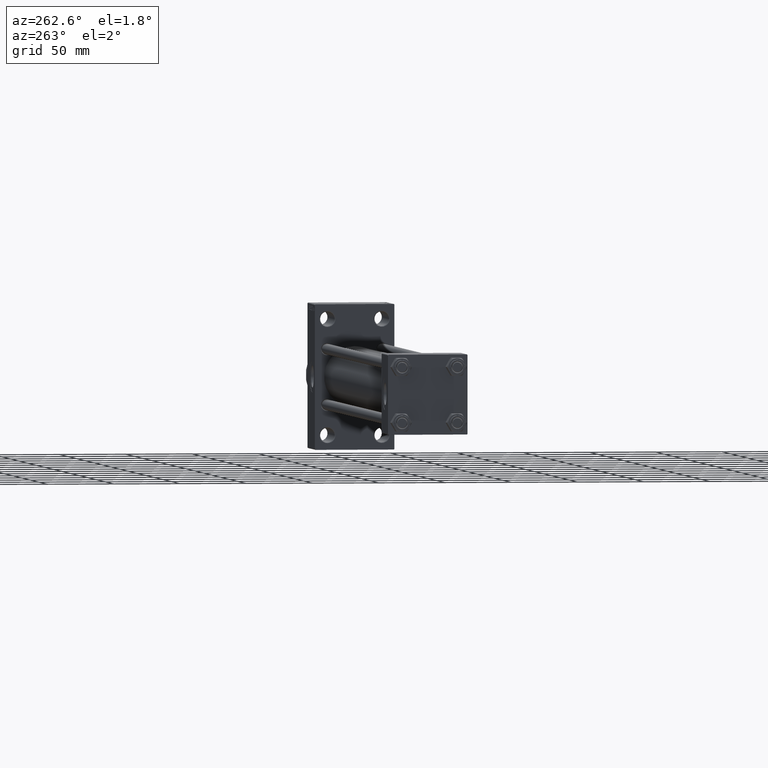
[diagram: clean part render]
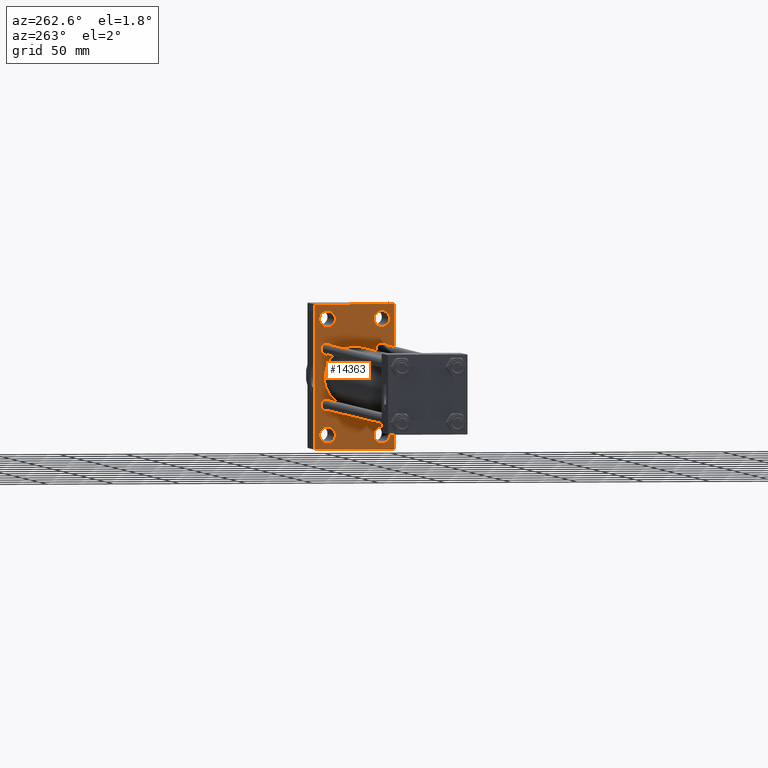
[diagram: same view with one face highlighted and labeled with its STEP entity id]
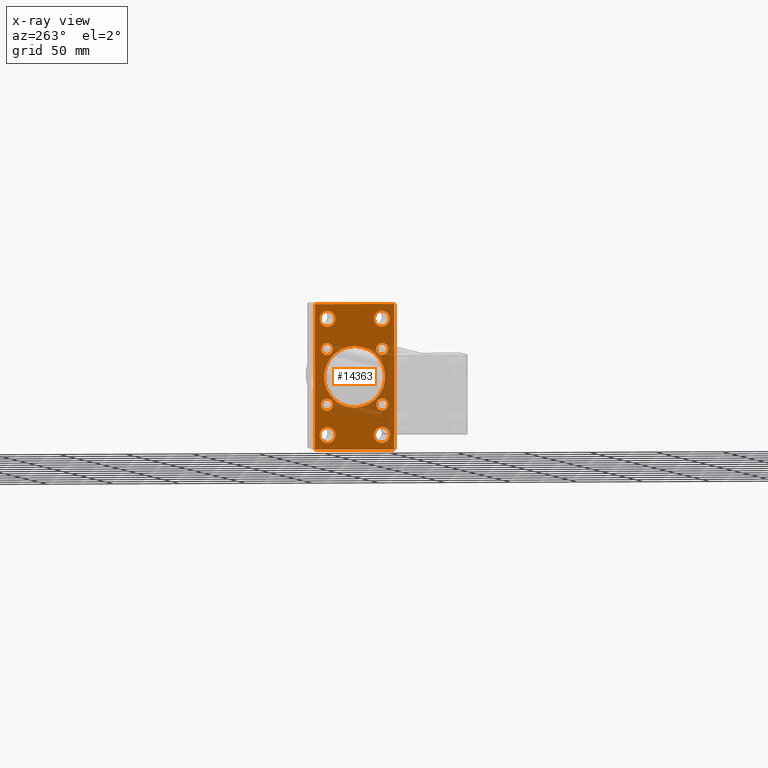
[diagram: x-ray of the same camera — body ghosted, the highlighted face saturated]
A machine part, auxiliary view. The second image highlights one B-rep face of the part: STEP entity #14363.
The next image is the same camera in x-ray: the body ghosted, the highlighted face saturated — about 22% of this face is hidden behind the body in this view.
In plain terms, the highlighted planar face has unit normal (-1, 0, 0).
Its self-contained STEP definition (entity closure, byte-faithful):
#122 = AXIS2_PLACEMENT_3D ( 'NONE', #8820, #8580, #38240 ) ;
#138 = CARTESIAN_POINT ( 'NONE',  ( 425.0000000000000000, 29.99999999999999645, 54.49999999999999289 ) ) ;
#152 = VECTOR ( 'NONE', #9442, 1000.000000000000000 ) ;
#271 = CIRCLE ( 'NONE', #42616, 4.500000000000007105 ) ;
#422 = VERTEX_POINT ( 'NONE', #31917 ) ;
#1286 = CARTESIAN_POINT ( 'NONE',  ( 425.0000000000000000, -20.84999999999999076, 20.85000000000000497 ) ) ;
#1304 = CIRCLE ( 'NONE', #15933, 23.00000000000000000 ) ;
#1403 = DIRECTION ( 'NONE',  ( 1.000000000000000000, -0.000000000000000000, 0.000000000000000000 ) ) ;
#1579 = EDGE_CURVE ( 'NONE', #41639, #33864, #24197, .T. ) ;
#2199 = CARTESIAN_POINT ( 'NONE',  ( 425.0000000000000000, 29.99999999999999645, 54.49999999999999289 ) ) ;
#2833 = ORIENTED_EDGE ( 'NONE', *, *, #45074, .T. ) ;
#2976 = CARTESIAN_POINT ( 'NONE',  ( 425.0000000000000000, 20.84999999999999787, -16.34999999999999432 ) ) ;
#3184 = CARTESIAN_POINT ( 'NONE',  ( 425.0000000000000000, 20.84999999999999787, 25.35000000000000853 ) ) ;
#3239 = VERTEX_POINT ( 'NONE', #31249 ) ;
#3446 = LINE ( 'NONE', #11877, #27910 ) ;
#3462 = VERTEX_POINT ( 'NONE', #29290 ) ;
#3650 = DIRECTION ( 'NONE',  ( 0.000000000000000000, 0.000000000000000000, 1.000000000000000000 ) ) ;
#3808 = CARTESIAN_POINT ( 'NONE',  ( 425.0000000000000000, -20.84999999999999076, -16.34999999999999787 ) ) ;
#4209 = AXIS2_PLACEMENT_3D ( 'NONE', #47521, #47272, #29181 ) ;
#4558 = EDGE_LOOP ( 'NONE', ( #34984, #12783 ) ) ;
#4560 = EDGE_CURVE ( 'NONE', #45084, #29654, #18176, .T. ) ;
#4772 = AXIS2_PLACEMENT_3D ( 'NONE', #9292, #12425, #9058 ) ;
#5172 = VERTEX_POINT ( 'NONE', #27504 ) ;
#5187 = EDGE_LOOP ( 'NONE', ( #14095, #8594 ) ) ;
#5526 = DIRECTION ( 'NONE',  ( 0.000000000000000000, 0.000000000000000000, 1.000000000000000000 ) ) ;
#5855 = VERTEX_POINT ( 'NONE', #32732 ) ;
#6001 = VECTOR ( 'NONE', #31567, 1000.000000000000000 ) ;
#6279 = ORIENTED_EDGE ( 'NONE', *, *, #17300, .T. ) ;
#6456 = ORIENTED_EDGE ( 'NONE', *, *, #41580, .F. ) ;
#6663 = AXIS2_PLACEMENT_3D ( 'NONE', #40554, #37176, #3650 ) ;
#7005 = CARTESIAN_POINT ( 'NONE',  ( 425.0000000000000000, 20.50000000000000000, -37.50000000000004974 ) ) ;
#7024 = DIRECTION ( 'NONE',  ( 0.000000000000000000, 0.000000000000000000, 1.000000000000000000 ) ) ;
#7063 = VERTEX_POINT ( 'NONE', #13571 ) ;
#7342 = VERTEX_POINT ( 'NONE', #11638 ) ;
#7667 = ORIENTED_EDGE ( 'NONE', *, *, #46688, .T. ) ;
#7693 = EDGE_CURVE ( 'NONE', #35580, #422, #40560, .T. ) ;
#7811 = EDGE_CURVE ( 'NONE', #3462, #34937, #1304, .T. ) ;
#7930 = EDGE_LOOP ( 'NONE', ( #30317, #29006 ) ) ;
#7961 = CIRCLE ( 'NONE', #39515, 5.999999999999950262 ) ;
#8090 = DIRECTION ( 'NONE',  ( 0.000000000000000000, 0.000000000000000000, 1.000000000000000000 ) ) ;
#8328 = DIRECTION ( 'NONE',  ( 1.000000000000000000, -0.000000000000000000, 0.000000000000000000 ) ) ;
#8356 = FACE_BOUND ( 'NONE', #15314, .T. ) ;
#8564 = VERTEX_POINT ( 'NONE', #45992 ) ;
#8580 = DIRECTION ( 'NONE',  ( 1.000000000000000000, -0.000000000000000000, 0.000000000000000000 ) ) ;
#8594 = ORIENTED_EDGE ( 'NONE', *, *, #29312, .T. ) ;
#8820 = CARTESIAN_POINT ( 'NONE',  ( 425.0000000000000000, 20.84999999999999787, 20.85000000000000142 ) ) ;
#9058 = DIRECTION ( 'NONE',  ( -0.000000000000000000, 0.000000000000000000, 1.000000000000000000 ) ) ;
#9292 = CARTESIAN_POINT ( 'NONE',  ( 425.0000000000000000, 0.000000000000000000, 0.000000000000000000 ) ) ;
#9321 = CARTESIAN_POINT ( 'NONE',  ( 425.0000000000000000, -20.50000000000000000, 37.50000000000004974 ) ) ;
#9425 = DIRECTION ( 'NONE',  ( -0.000000000000000000, -0.7071067811865474617, -0.7071067811865474617 ) ) ;
#9442 = DIRECTION ( 'NONE',  ( 0.000000000000000000, 0.000000000000000000, -1.000000000000000000 ) ) ;
#9965 = DIRECTION ( 'NONE',  ( 1.000000000000000000, -0.000000000000000000, 0.000000000000000000 ) ) ;
#10162 = LINE ( 'NONE', #2199, #152 ) ;
#10756 = DIRECTION ( 'NONE',  ( 0.000000000000000000, 0.000000000000000000, 1.000000000000000000 ) ) ;
#11210 = CIRCLE ( 'NONE', #21977, 4.500000000000007105 ) ;
#11601 = ORIENTED_EDGE ( 'NONE', *, *, #46025, .T. ) ;
#11615 = EDGE_CURVE ( 'NONE', #33864, #41639, #29316, .T. ) ;
#11638 = CARTESIAN_POINT ( 'NONE',  ( 425.0000000000000000, -29.49999999999988987, 54.50000000000000000 ) ) ;
#11799 = VERTEX_POINT ( 'NONE', #30405 ) ;
#11877 = CARTESIAN_POINT ( 'NONE',  ( 425.0000000000000000, -30.00000000000000000, 54.50000000000000000 ) ) ;
#12425 = DIRECTION ( 'NONE',  ( -1.000000000000000000, 0.000000000000000000, -0.000000000000000000 ) ) ;
#12733 = VERTEX_POINT ( 'NONE', #17765 ) ;
#12783 = ORIENTED_EDGE ( 'NONE', *, *, #35100, .T. ) ;
#12857 = DIRECTION ( 'NONE',  ( 0.000000000000000000, 0.000000000000000000, 1.000000000000000000 ) ) ;
#13042 = LINE ( 'NONE', #20743, #19458 ) ;
#13405 = ORIENTED_EDGE ( 'NONE', *, *, #19645, .T. ) ;
#13571 = CARTESIAN_POINT ( 'NONE',  ( 425.0000000000000000, -20.84999999999999076, -25.35000000000001208 ) ) ;
#13608 = DIRECTION ( 'NONE',  ( 0.000000000000000000, 0.7071067811865081598, -0.7071067811865868746 ) ) ;
#14095 = ORIENTED_EDGE ( 'NONE', *, *, #37802, .T. ) ;
#14363 = ADVANCED_FACE ( 'NONE', ( #33920, #34395, #38243, #19896, #8356, #38000, #41625, #45711, #23284, #23052 ), #27144, .T. ) ;
#14624 = CARTESIAN_POINT ( 'NONE',  ( 425.0000000000000000, -20.50000000000000000, 49.49999999999995026 ) ) ;
#14690 = CARTESIAN_POINT ( 'NONE',  ( 425.0000000000000000, -20.84999999999999076, 20.85000000000000497 ) ) ;
#14878 = AXIS2_PLACEMENT_3D ( 'NONE', #47667, #21835, #10756 ) ;
#15214 = CARTESIAN_POINT ( 'NONE',  ( 425.0000000000000000, -30.00000000000000000, 53.99999999999994316 ) ) ;
#15314 = EDGE_LOOP ( 'NONE', ( #15808, #2833 ) ) ;
#15370 = CARTESIAN_POINT ( 'NONE',  ( 425.0000000000000000, -2.602085213965210642E-15, 0.000000000000000000 ) ) ;
#15488 = EDGE_LOOP ( 'NONE', ( #19252, #26090 ) ) ;
#15808 = ORIENTED_EDGE ( 'NONE', *, *, #43706, .T. ) ;
#15933 = AXIS2_PLACEMENT_3D ( 'NONE', #22365, #33238, #29866 ) ;
#16009 = CARTESIAN_POINT ( 'NONE',  ( 425.0000000000000000, -20.84999999999999076, -20.85000000000000497 ) ) ;
#16590 = VERTEX_POINT ( 'NONE', #2976 ) ;
#17292 = VERTEX_POINT ( 'NONE', #3808 ) ;
#17300 = EDGE_CURVE ( 'NONE', #34937, #3462, #26414, .T. ) ;
#17765 = CARTESIAN_POINT ( 'NONE',  ( 425.0000000000000000, 29.49999999999993960, -54.49999999999999289 ) ) ;
#17975 = CARTESIAN_POINT ( 'NONE',  ( 425.0000000000000000, 29.99999999999999645, 53.99999999999999289 ) ) ;
#18074 = CARTESIAN_POINT ( 'NONE',  ( 425.0000000000000000, 29.50000000000004974, 54.49999999999999289 ) ) ;
#18176 = LINE ( 'NONE', #24698, #26659 ) ;
#18357 = VERTEX_POINT ( 'NONE', #14624 ) ;
#18699 = LINE ( 'NONE', #138, #32937 ) ;
#18791 = EDGE_LOOP ( 'NONE', ( #25446, #6279 ) ) ;
#19252 = ORIENTED_EDGE ( 'NONE', *, *, #42275, .T. ) ;
#19458 = VECTOR ( 'NONE', #9425, 1000.000000000000114 ) ;
#19462 = AXIS2_PLACEMENT_3D ( 'NONE', #25276, #40470, #22366 ) ;
#19645 = EDGE_CURVE ( 'NONE', #17292, #7063, #31903, .T. ) ;
#19753 = AXIS2_PLACEMENT_3D ( 'NONE', #23850, #41959, #5526 ) ;
#19875 = DIRECTION ( 'NONE',  ( 1.000000000000000000, -0.000000000000000000, 0.000000000000000000 ) ) ;
#19896 = FACE_BOUND ( 'NONE', #47743, .T. ) ;
#20328 = CARTESIAN_POINT ( 'NONE',  ( 425.0000000000000000, 20.84999999999999787, -20.85000000000000142 ) ) ;
#20504 = EDGE_CURVE ( 'NONE', #12733, #8564, #22845, .T. ) ;
#20622 = VERTEX_POINT ( 'NONE', #9321 ) ;
#20743 = CARTESIAN_POINT ( 'NONE',  ( 425.0000000000000000, 41.99999999999996447, -41.99999999999996447 ) ) ;
#21835 = DIRECTION ( 'NONE',  ( 1.000000000000000000, -0.000000000000000000, 0.000000000000000000 ) ) ;
#21977 = AXIS2_PLACEMENT_3D ( 'NONE', #34132, #19875, #41375 ) ;
#22135 = DIRECTION ( 'NONE',  ( 0.000000000000000000, 0.000000000000000000, -1.000000000000000000 ) ) ;
#22337 = VERTEX_POINT ( 'NONE', #30138 ) ;
#22365 = CARTESIAN_POINT ( 'NONE',  ( 425.0000000000000000, -2.602085213965210642E-15, 0.000000000000000000 ) ) ;
#22366 = DIRECTION ( 'NONE',  ( 0.000000000000000000, 0.000000000000000000, 1.000000000000000000 ) ) ;
#22517 = DIRECTION ( 'NONE',  ( 1.000000000000000000, -0.000000000000000000, 0.000000000000000000 ) ) ;
#22663 = CARTESIAN_POINT ( 'NONE',  ( 425.0000000000000000, -41.99999999999841549, 42.00000000000278533 ) ) ;
#22845 = LINE ( 'NONE', #44810, #47337 ) ;
#23052 = FACE_OUTER_BOUND ( 'NONE', #47420, .T. ) ;
#23167 = CIRCLE ( 'NONE', #23947, 5.999999999999950262 ) ;
#23284 = FACE_BOUND ( 'NONE', #18791, .T. ) ;
#23472 = DIRECTION ( 'NONE',  ( 0.000000000000000000, 0.000000000000000000, 1.000000000000000000 ) ) ;
#23627 = CIRCLE ( 'NONE', #36720, 5.999999999999950262 ) ;
#23850 = CARTESIAN_POINT ( 'NONE',  ( 425.0000000000000000, 20.50000000000000000, -43.50000000000000000 ) ) ;
#23947 = AXIS2_PLACEMENT_3D ( 'NONE', #36862, #32525, #40226 ) ;
#24197 = CIRCLE ( 'NONE', #4209, 5.999999999999950262 ) ;
#24392 = CARTESIAN_POINT ( 'NONE',  ( 425.0000000000000000, -20.50000000000000000, 43.50000000000000000 ) ) ;
#24476 = AXIS2_PLACEMENT_3D ( 'NONE', #41363, #45923, #38443 ) ;
#24698 = CARTESIAN_POINT ( 'NONE',  ( 425.0000000000000000, 42.00000000000166267, 41.99999999999699440 ) ) ;
#24969 = AXIS2_PLACEMENT_3D ( 'NONE', #16009, #8328, #8090 ) ;
#25125 = ORIENTED_EDGE ( 'NONE', *, *, #36569, .T. ) ;
#25276 = CARTESIAN_POINT ( 'NONE',  ( 425.0000000000000000, 20.84999999999999787, 20.85000000000000142 ) ) ;
#25446 = ORIENTED_EDGE ( 'NONE', *, *, #7811, .T. ) ;
#25695 = EDGE_CURVE ( 'NONE', #16590, #5855, #11210, .T. ) ;
#26090 = ORIENTED_EDGE ( 'NONE', *, *, #40357, .T. ) ;
#26225 = DIRECTION ( 'NONE',  ( 1.000000000000000000, 0.000000000000000000, 0.000000000000000000 ) ) ;
#26414 = CIRCLE ( 'NONE', #36448, 23.00000000000000000 ) ;
#26659 = VECTOR ( 'NONE', #13608, 1000.000000000000000 ) ;
#27144 = PLANE ( 'NONE',  #4772 ) ;
#27187 = VECTOR ( 'NONE', #30393, 1000.000000000000000 ) ;
#27504 = CARTESIAN_POINT ( 'NONE',  ( 425.0000000000000000, -20.84999999999999076, 25.35000000000001208 ) ) ;
#27646 = AXIS2_PLACEMENT_3D ( 'NONE', #20328, #9965, #12857 ) ;
#27910 = VECTOR ( 'NONE', #37210, 1000.000000000000000 ) ;
#28164 = VERTEX_POINT ( 'NONE', #15214 ) ;
#28174 = EDGE_CURVE ( 'NONE', #7063, #17292, #45165, .T. ) ;
#28250 = CARTESIAN_POINT ( 'NONE',  ( 425.0000000000000000, 2.146024240737012665E-16, -23.00000000000000000 ) ) ;
#28710 = DIRECTION ( 'NONE',  ( 1.000000000000000000, -0.000000000000000000, 0.000000000000000000 ) ) ;
#29006 = ORIENTED_EDGE ( 'NONE', *, *, #32417, .T. ) ;
#29181 = DIRECTION ( 'NONE',  ( 0.000000000000000000, 0.000000000000000000, 1.000000000000000000 ) ) ;
#29209 = CARTESIAN_POINT ( 'NONE',  ( 425.0000000000000000, 20.50000000000000000, 43.50000000000000000 ) ) ;
#29290 = CARTESIAN_POINT ( 'NONE',  ( 425.0000000000000000, -2.602085213965210642E-15, 23.00000000000000000 ) ) ;
#29312 = EDGE_CURVE ( 'NONE', #11799, #22337, #23627, .T. ) ;
#29316 = CIRCLE ( 'NONE', #39338, 5.999999999999950262 ) ;
#29441 = DIRECTION ( 'NONE',  ( 0.000000000000000000, 0.000000000000000000, 1.000000000000000000 ) ) ;
#29475 = ORIENTED_EDGE ( 'NONE', *, *, #1579, .T. ) ;
#29654 = VERTEX_POINT ( 'NONE', #17975 ) ;
#29866 = DIRECTION ( 'NONE',  ( 0.000000000000000000, 0.000000000000000000, -1.000000000000000000 ) ) ;
#29917 = LINE ( 'NONE', #22663, #27187 ) ;
#30138 = CARTESIAN_POINT ( 'NONE',  ( 425.0000000000000000, -20.50000000000000000, -37.50000000000004974 ) ) ;
#30317 = ORIENTED_EDGE ( 'NONE', *, *, #7693, .T. ) ;
#30393 = DIRECTION ( 'NONE',  ( -0.000000000000000000, 0.7071067811865843211, 0.7071067811865107133 ) ) ;
#30405 = CARTESIAN_POINT ( 'NONE',  ( 425.0000000000000000, -20.50000000000000000, -49.49999999999995026 ) ) ;
#30706 = CARTESIAN_POINT ( 'NONE',  ( 425.0000000000000000, 20.84999999999999787, 16.34999999999999432 ) ) ;
#31084 = EDGE_LOOP ( 'NONE', ( #13405, #45388 ) ) ;
#31249 = CARTESIAN_POINT ( 'NONE',  ( 425.0000000000000000, 29.99999999999999645, -53.99999999999993605 ) ) ;
#31481 = EDGE_CURVE ( 'NONE', #45084, #7342, #18699, .T. ) ;
#31567 = DIRECTION ( 'NONE',  ( 0.000000000000000000, -0.7071067811864960584, 0.7071067811865990871 ) ) ;
#31903 = CIRCLE ( 'NONE', #24969, 4.500000000000007105 ) ;
#31917 = CARTESIAN_POINT ( 'NONE',  ( 425.0000000000000000, 20.50000000000000000, -49.49999999999995026 ) ) ;
#32098 = EDGE_LOOP ( 'NONE', ( #40068, #7667 ) ) ;
#32417 = EDGE_CURVE ( 'NONE', #422, #35580, #39128, .T. ) ;
#32525 = DIRECTION ( 'NONE',  ( 1.000000000000000000, -0.000000000000000000, 0.000000000000000000 ) ) ;
#32732 = CARTESIAN_POINT ( 'NONE',  ( 425.0000000000000000, 20.84999999999999787, -25.35000000000000853 ) ) ;
#32866 = VERTEX_POINT ( 'NONE', #47053 ) ;
#32867 = ORIENTED_EDGE ( 'NONE', *, *, #4560, .T. ) ;
#32937 = VECTOR ( 'NONE', #47683, 1000.000000000000000 ) ;
#33238 = DIRECTION ( 'NONE',  ( 1.000000000000000000, 0.000000000000000000, 0.000000000000000000 ) ) ;
#33864 = VERTEX_POINT ( 'NONE', #39113 ) ;
#33878 = ORIENTED_EDGE ( 'NONE', *, *, #11615, .T. ) ;
#33920 = FACE_BOUND ( 'NONE', #32098, .T. ) ;
#34132 = CARTESIAN_POINT ( 'NONE',  ( 425.0000000000000000, 20.84999999999999787, -20.85000000000000142 ) ) ;
#34395 = FACE_BOUND ( 'NONE', #5187, .T. ) ;
#34770 = ORIENTED_EDGE ( 'NONE', *, *, #20504, .T. ) ;
#34937 = VERTEX_POINT ( 'NONE', #28250 ) ;
#34984 = ORIENTED_EDGE ( 'NONE', *, *, #25695, .T. ) ;
#35100 = EDGE_CURVE ( 'NONE', #5855, #16590, #42186, .T. ) ;
#35580 = VERTEX_POINT ( 'NONE', #7005 ) ;
#35752 = VERTEX_POINT ( 'NONE', #45337 ) ;
#36448 = AXIS2_PLACEMENT_3D ( 'NONE', #15370, #26225, #22135 ) ;
#36569 = EDGE_CURVE ( 'NONE', #8564, #32866, #45805, .T. ) ;
#36720 = AXIS2_PLACEMENT_3D ( 'NONE', #45781, #1403, #41929 ) ;
#36862 = CARTESIAN_POINT ( 'NONE',  ( 425.0000000000000000, -20.50000000000000000, -43.50000000000000000 ) ) ;
#37176 = DIRECTION ( 'NONE',  ( 1.000000000000000000, -0.000000000000000000, 0.000000000000000000 ) ) ;
#37210 = DIRECTION ( 'NONE',  ( 0.000000000000000000, 0.000000000000000000, -1.000000000000000000 ) ) ;
#37297 = ORIENTED_EDGE ( 'NONE', *, *, #41747, .T. ) ;
#37548 = ORIENTED_EDGE ( 'NONE', *, *, #45049, .T. ) ;
#37563 = DIRECTION ( 'NONE',  ( 0.000000000000000000, -1.000000000000000000, -1.156482317317871478E-16 ) ) ;
#37802 = EDGE_CURVE ( 'NONE', #22337, #11799, #23167, .T. ) ;
#38000 = FACE_BOUND ( 'NONE', #15488, .T. ) ;
#38240 = DIRECTION ( 'NONE',  ( 0.000000000000000000, 0.000000000000000000, 1.000000000000000000 ) ) ;
#38243 = FACE_BOUND ( 'NONE', #7930, .T. ) ;
#38443 = DIRECTION ( 'NONE',  ( 0.000000000000000000, 0.000000000000000000, 1.000000000000000000 ) ) ;
#38660 = VERTEX_POINT ( 'NONE', #30706 ) ;
#39113 = CARTESIAN_POINT ( 'NONE',  ( 425.0000000000000000, 20.50000000000000000, 49.49999999999995026 ) ) ;
#39128 = CIRCLE ( 'NONE', #24476, 5.999999999999950262 ) ;
#39278 = CARTESIAN_POINT ( 'NONE',  ( 425.0000000000000000, -42.00000000000216716, -41.99999999999604938 ) ) ;
#39338 = AXIS2_PLACEMENT_3D ( 'NONE', #29209, #43691, #29441 ) ;
#39515 = AXIS2_PLACEMENT_3D ( 'NONE', #24392, #40062, #7024 ) ;
#40062 = DIRECTION ( 'NONE',  ( 1.000000000000000000, -0.000000000000000000, 0.000000000000000000 ) ) ;
#40068 = ORIENTED_EDGE ( 'NONE', *, *, #47415, .T. ) ;
#40226 = DIRECTION ( 'NONE',  ( 0.000000000000000000, 0.000000000000000000, 1.000000000000000000 ) ) ;
#40357 = EDGE_CURVE ( 'NONE', #38660, #44917, #43288, .T. ) ;
#40470 = DIRECTION ( 'NONE',  ( 1.000000000000000000, -0.000000000000000000, 0.000000000000000000 ) ) ;
#40515 = DIRECTION ( 'NONE',  ( 0.000000000000000000, 0.000000000000000000, 1.000000000000000000 ) ) ;
#40554 = CARTESIAN_POINT ( 'NONE',  ( 425.0000000000000000, -20.84999999999999076, -20.85000000000000497 ) ) ;
#40560 = CIRCLE ( 'NONE', #19753, 5.999999999999950262 ) ;
#41064 = CARTESIAN_POINT ( 'NONE',  ( 425.0000000000000000, 20.50000000000000000, 37.50000000000004974 ) ) ;
#41142 = AXIS2_PLACEMENT_3D ( 'NONE', #14690, #28710, #40515 ) ;
#41363 = CARTESIAN_POINT ( 'NONE',  ( 425.0000000000000000, 20.50000000000000000, -43.50000000000000000 ) ) ;
#41375 = DIRECTION ( 'NONE',  ( 0.000000000000000000, 0.000000000000000000, 1.000000000000000000 ) ) ;
#41580 = EDGE_CURVE ( 'NONE', #28164, #32866, #3446, .T. ) ;
#41625 = FACE_BOUND ( 'NONE', #4558, .T. ) ;
#41639 = VERTEX_POINT ( 'NONE', #41064 ) ;
#41747 = EDGE_CURVE ( 'NONE', #29654, #3239, #10162, .T. ) ;
#41929 = DIRECTION ( 'NONE',  ( 0.000000000000000000, 0.000000000000000000, 1.000000000000000000 ) ) ;
#41959 = DIRECTION ( 'NONE',  ( 1.000000000000000000, -0.000000000000000000, 0.000000000000000000 ) ) ;
#42186 = CIRCLE ( 'NONE', #27646, 4.500000000000007105 ) ;
#42275 = EDGE_CURVE ( 'NONE', #44917, #38660, #46434, .T. ) ;
#42616 = AXIS2_PLACEMENT_3D ( 'NONE', #1286, #22517, #23472 ) ;
#43288 = CIRCLE ( 'NONE', #122, 4.500000000000007105 ) ;
#43691 = DIRECTION ( 'NONE',  ( 1.000000000000000000, -0.000000000000000000, 0.000000000000000000 ) ) ;
#43706 = EDGE_CURVE ( 'NONE', #5172, #35752, #271, .T. ) ;
#44810 = CARTESIAN_POINT ( 'NONE',  ( 425.0000000000000000, 29.99999999999999645, -54.49999999999999289 ) ) ;
#44917 = VERTEX_POINT ( 'NONE', #3184 ) ;
#44971 = CIRCLE ( 'NONE', #14878, 5.999999999999950262 ) ;
#45049 = EDGE_CURVE ( 'NONE', #3239, #12733, #13042, .T. ) ;
#45074 = EDGE_CURVE ( 'NONE', #35752, #5172, #46429, .T. ) ;
#45084 = VERTEX_POINT ( 'NONE', #18074 ) ;
#45165 = CIRCLE ( 'NONE', #6663, 4.500000000000007105 ) ;
#45337 = CARTESIAN_POINT ( 'NONE',  ( 425.0000000000000000, -20.84999999999999076, 16.34999999999999787 ) ) ;
#45388 = ORIENTED_EDGE ( 'NONE', *, *, #28174, .T. ) ;
#45711 = FACE_BOUND ( 'NONE', #31084, .T. ) ;
#45781 = CARTESIAN_POINT ( 'NONE',  ( 425.0000000000000000, -20.50000000000000000, -43.50000000000000000 ) ) ;
#45805 = LINE ( 'NONE', #39278, #6001 ) ;
#45923 = DIRECTION ( 'NONE',  ( 1.000000000000000000, -0.000000000000000000, 0.000000000000000000 ) ) ;
#45992 = CARTESIAN_POINT ( 'NONE',  ( 425.0000000000000000, -29.50000000000005684, -54.50000000000000000 ) ) ;
#46025 = EDGE_CURVE ( 'NONE', #28164, #7342, #29917, .T. ) ;
#46429 = CIRCLE ( 'NONE', #41142, 4.500000000000007105 ) ;
#46434 = CIRCLE ( 'NONE', #19462, 4.500000000000007105 ) ;
#46688 = EDGE_CURVE ( 'NONE', #20622, #18357, #7961, .T. ) ;
#46795 = ORIENTED_EDGE ( 'NONE', *, *, #31481, .F. ) ;
#47053 = CARTESIAN_POINT ( 'NONE',  ( 425.0000000000000000, -30.00000000000000000, -53.99999999999998579 ) ) ;
#47272 = DIRECTION ( 'NONE',  ( 1.000000000000000000, -0.000000000000000000, 0.000000000000000000 ) ) ;
#47337 = VECTOR ( 'NONE', #37563, 1000.000000000000000 ) ;
#47415 = EDGE_CURVE ( 'NONE', #18357, #20622, #44971, .T. ) ;
#47420 = EDGE_LOOP ( 'NONE', ( #34770, #25125, #6456, #11601, #46795, #32867, #37297, #37548 ) ) ;
#47521 = CARTESIAN_POINT ( 'NONE',  ( 425.0000000000000000, 20.50000000000000000, 43.50000000000000000 ) ) ;
#47667 = CARTESIAN_POINT ( 'NONE',  ( 425.0000000000000000, -20.50000000000000000, 43.50000000000000000 ) ) ;
#47683 = DIRECTION ( 'NONE',  ( 0.000000000000000000, -1.000000000000000000, 1.156482317317871478E-16 ) ) ;
#47743 = EDGE_LOOP ( 'NONE', ( #33878, #29475 ) ) ;